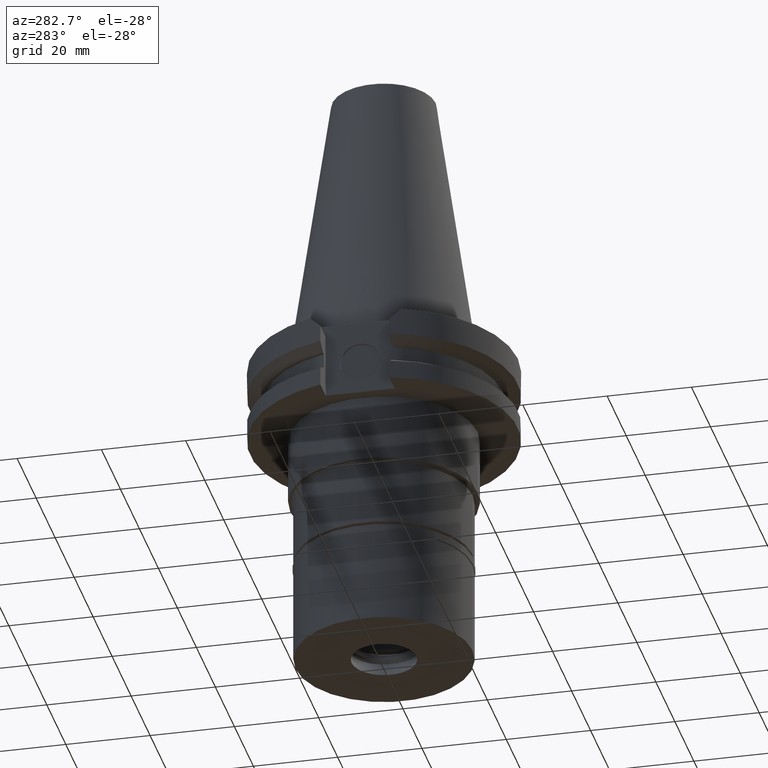
[diagram: clean part render]
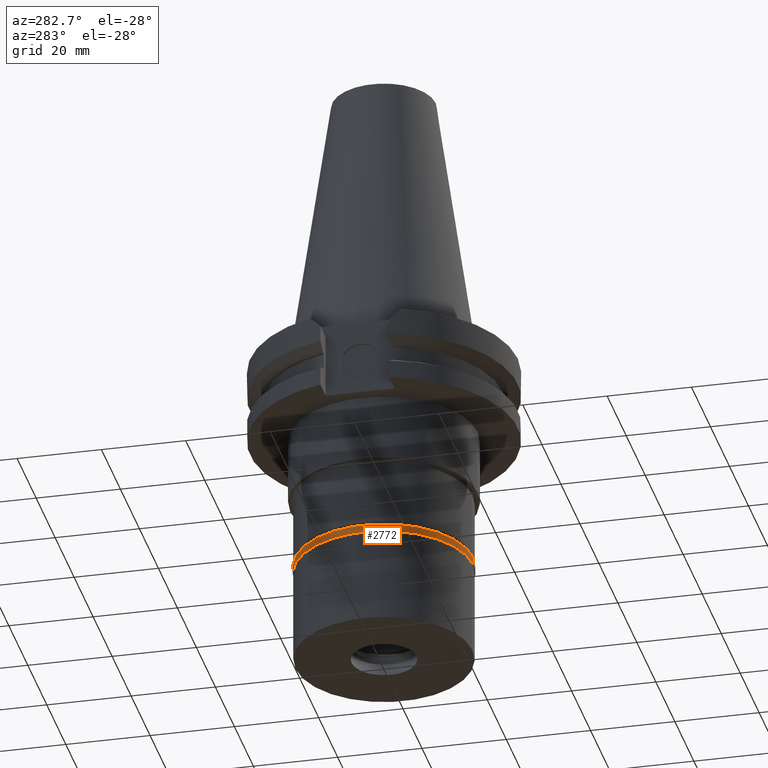
[diagram: same view with one face highlighted and labeled with its STEP entity id]
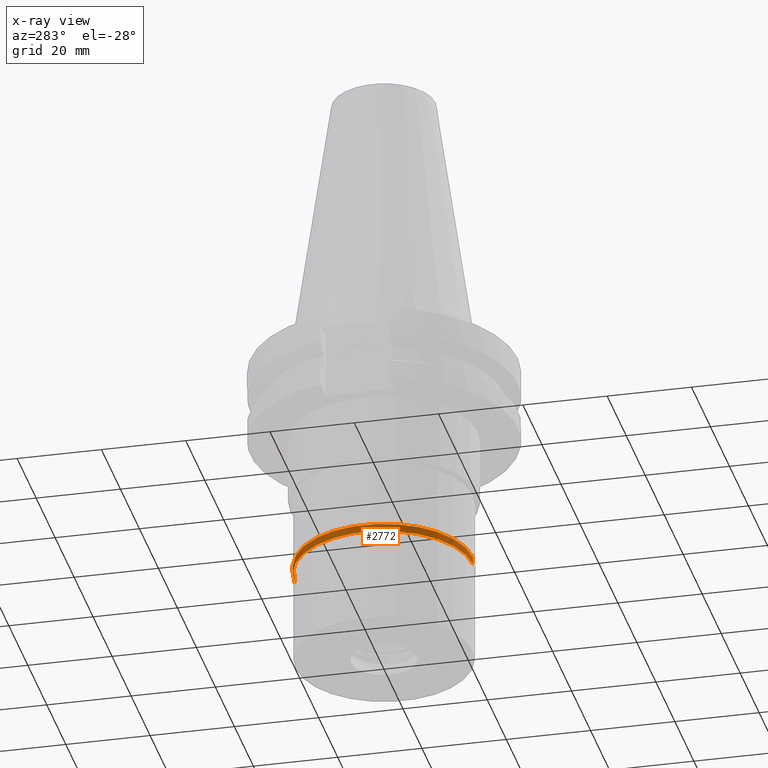
[diagram: x-ray of the same camera — body ghosted, the highlighted face saturated]
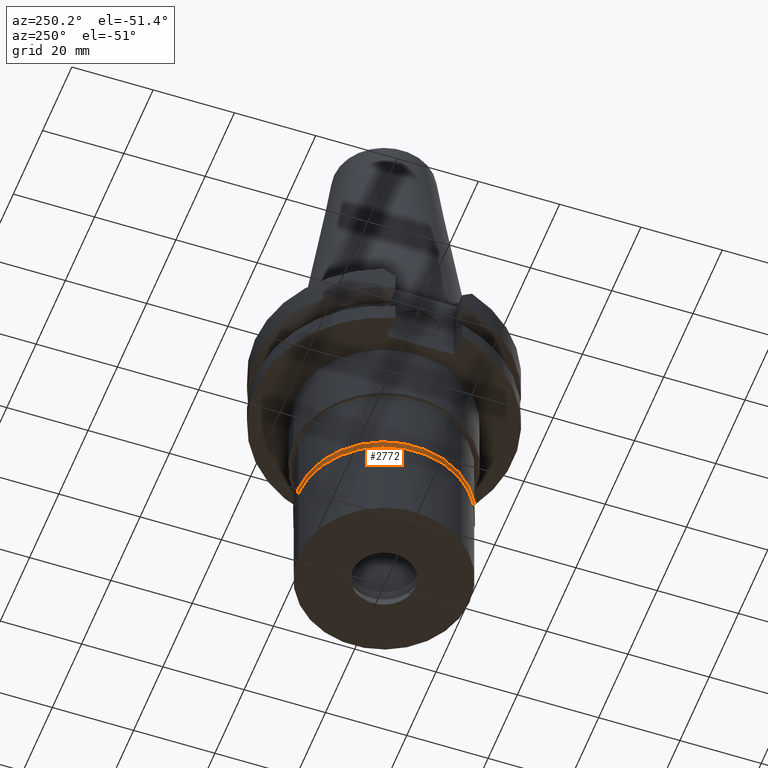
[diagram: same view with one face highlighted and labeled with its STEP entity id]
A machine part, auxiliary view. The second image highlights one B-rep face of the part: STEP entity #2772.
The next image is the same camera in x-ray: the body ghosted, the highlighted face saturated — about 0% of this face is hidden behind the body in this view.
A second angle (auxiliary view) of the same face is appended — the face is thin or edge-on in the first view.
In plain terms, the highlighted cylindrical surface (partial cylindrical patch) has radius 21.15 mm, axis along (0, 0, -1).
Its self-contained STEP definition (entity closure, byte-faithful):
#69 = EDGE_LOOP ( 'NONE', ( #2701, #3179, #2354, #1950 ) ) ;
#102 = CARTESIAN_POINT ( 'NONE',  ( 0.0000000000000000000, -21.14999999999999858, 0.0000000000000000000 ) ) ;
#165 = CIRCLE ( 'NONE', #3093, 21.14999999999999858 ) ;
#198 = CARTESIAN_POINT ( 'NONE',  ( 0.0000000000000000000, -21.14999999999999858, -1.850000000000000089 ) ) ;
#221 = CIRCLE ( 'NONE', #3042, 21.14999999999999858 ) ;
#236 = VERTEX_POINT ( 'NONE', #3066 ) ;
#285 = DIRECTION ( 'NONE',  ( 0.0000000000000000000, 0.0000000000000000000, -1.000000000000000000 ) ) ;
#368 = CARTESIAN_POINT ( 'NONE',  ( 0.0000000000000000000, 21.14999999999999858, -1.850000000000000089 ) ) ;
#467 = CARTESIAN_POINT ( 'NONE',  ( 0.0000000000000000000, -21.14999999999999858, 0.0000000000000000000 ) ) ;
#707 = DIRECTION ( 'NONE',  ( 0.0000000000000000000, 0.0000000000000000000, -1.000000000000000000 ) ) ;
#811 = VECTOR ( 'NONE', #285, 1000.000000000000000 ) ;
#945 = VERTEX_POINT ( 'NONE', #368 ) ;
#984 = CARTESIAN_POINT ( 'NONE',  ( 0.0000000000000000000, 21.14999999999999858, 0.0000000000000000000 ) ) ;
#1069 = AXIS2_PLACEMENT_3D ( 'NONE', #2926, #707, #2976 ) ;
#1129 = CYLINDRICAL_SURFACE ( 'NONE', #1069, 21.14999999999999858 ) ;
#1194 = FACE_OUTER_BOUND ( 'NONE', #69, .T. ) ;
#1292 = VERTEX_POINT ( 'NONE', #467 ) ;
#1387 = VECTOR ( 'NONE', #2900, 1000.000000000000000 ) ;
#1396 = EDGE_CURVE ( 'NONE', #945, #1896, #165, .T. ) ;
#1442 = EDGE_CURVE ( 'NONE', #1292, #236, #221, .T. ) ;
#1754 = CARTESIAN_POINT ( 'NONE',  ( 0.0000000000000000000, 0.0000000000000000000, -1.850000000000000089 ) ) ;
#1896 = VERTEX_POINT ( 'NONE', #198 ) ;
#1950 = ORIENTED_EDGE ( 'NONE', *, *, #2539, .T. ) ;
#1986 = DIRECTION ( 'NONE',  ( 0.0000000000000000000, -1.000000000000000000, 0.0000000000000000000 ) ) ;
#2254 = EDGE_CURVE ( 'NONE', #1292, #1896, #2692, .T. ) ;
#2255 = LINE ( 'NONE', #984, #811 ) ;
#2297 = DIRECTION ( 'NONE',  ( 0.0000000000000000000, 0.0000000000000000000, 1.000000000000000000 ) ) ;
#2354 = ORIENTED_EDGE ( 'NONE', *, *, #1442, .T. ) ;
#2539 = EDGE_CURVE ( 'NONE', #236, #945, #2255, .T. ) ;
#2568 = DIRECTION ( 'NONE',  ( 0.0000000000000000000, 1.000000000000000000, 0.0000000000000000000 ) ) ;
#2692 = LINE ( 'NONE', #102, #1387 ) ;
#2701 = ORIENTED_EDGE ( 'NONE', *, *, #1396, .T. ) ;
#2740 = CARTESIAN_POINT ( 'NONE',  ( 0.0000000000000000000, 0.0000000000000000000, 0.0000000000000000000 ) ) ;
#2772 = ADVANCED_FACE ( 'NONE', ( #1194 ), #1129, .T. ) ;
#2900 = DIRECTION ( 'NONE',  ( 0.0000000000000000000, 0.0000000000000000000, -1.000000000000000000 ) ) ;
#2926 = CARTESIAN_POINT ( 'NONE',  ( 0.0000000000000000000, 0.0000000000000000000, 0.0000000000000000000 ) ) ;
#2976 = DIRECTION ( 'NONE',  ( 0.0000000000000000000, -1.000000000000000000, 0.0000000000000000000 ) ) ;
#3042 = AXIS2_PLACEMENT_3D ( 'NONE', #2740, #3263, #1986 ) ;
#3066 = CARTESIAN_POINT ( 'NONE',  ( 0.0000000000000000000, 21.14999999999999858, 0.0000000000000000000 ) ) ;
#3093 = AXIS2_PLACEMENT_3D ( 'NONE', #1754, #2297, #2568 ) ;
#3179 = ORIENTED_EDGE ( 'NONE', *, *, #2254, .F. ) ;
#3263 = DIRECTION ( 'NONE',  ( 0.0000000000000000000, 0.0000000000000000000, -1.000000000000000000 ) ) ;